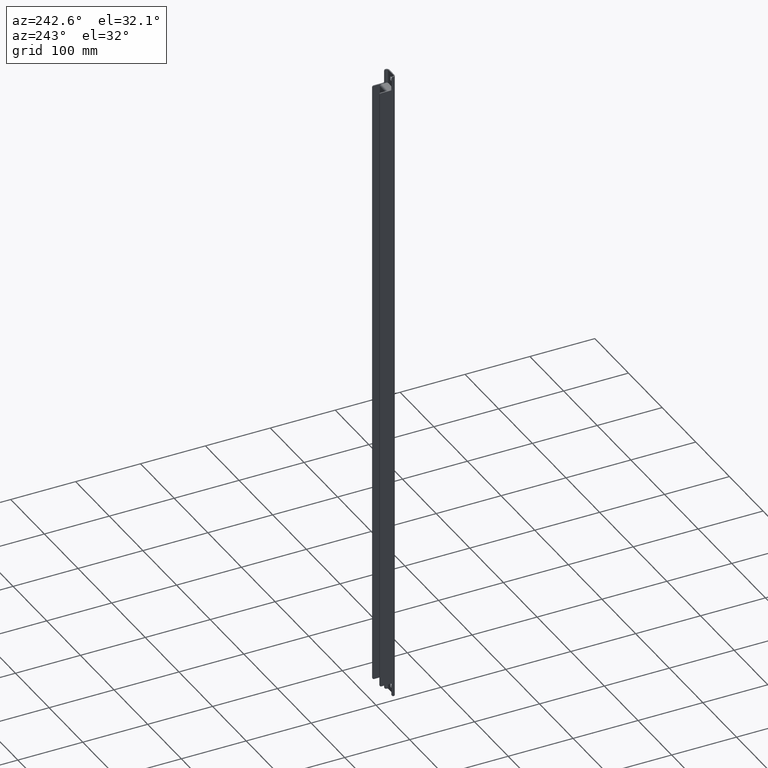
[diagram: clean part render]
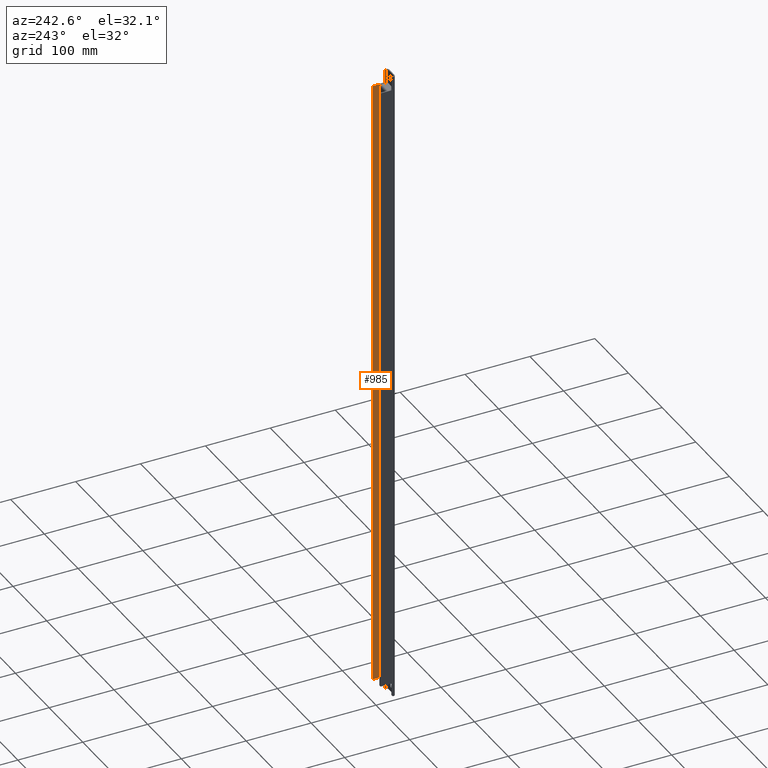
[diagram: same view with one face highlighted and labeled with its STEP entity id]
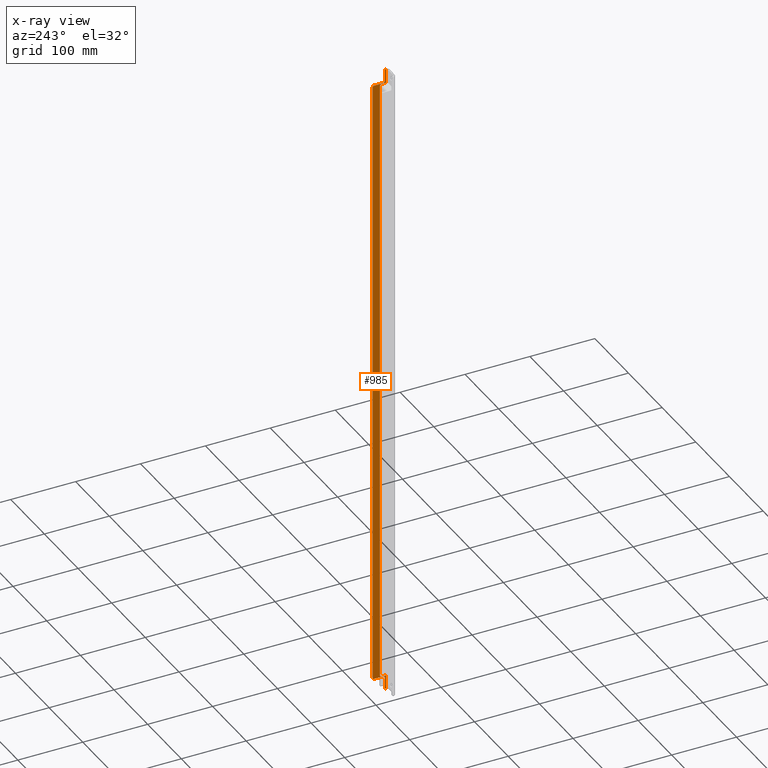
[diagram: x-ray of the same camera — body ghosted, the highlighted face saturated]
A machine part, auxiliary view. The second image highlights one B-rep face of the part: STEP entity #985.
The next image is the same camera in x-ray: the body ghosted, the highlighted face saturated — about 0% of this face is hidden behind the body in this view.
In plain terms, the highlighted planar face has unit normal (1, -0, 0).
Its self-contained STEP definition (entity closure, byte-faithful):
#40=LINE('',#1554,#128);
#45=LINE('',#1569,#133);
#46=LINE('',#1574,#134);
#57=LINE('',#1613,#145);
#58=LINE('',#1617,#146);
#59=LINE('',#1621,#147);
#60=LINE('',#1625,#148);
#61=LINE('',#1629,#149);
#62=LINE('',#1633,#150);
#63=LINE('',#1637,#151);
#128=VECTOR('',#1228,1000.);
#133=VECTOR('',#1239,1000.);
#134=VECTOR('',#1246,1000.);
#145=VECTOR('',#1281,1000.);
#146=VECTOR('',#1284,1000.);
#147=VECTOR('',#1287,1000.);
#148=VECTOR('',#1290,1000.);
#149=VECTOR('',#1293,1000.);
#150=VECTOR('',#1296,1000.);
#151=VECTOR('',#1299,1000.);
#298=ORIENTED_EDGE('',*,*,#555,.F.);
#299=ORIENTED_EDGE('',*,*,#577,.T.);
#300=ORIENTED_EDGE('',*,*,#558,.F.);
#301=ORIENTED_EDGE('',*,*,#578,.T.);
#302=ORIENTED_EDGE('',*,*,#548,.F.);
#303=ORIENTED_EDGE('',*,*,#579,.F.);
#304=ORIENTED_EDGE('',*,*,#580,.T.);
#305=ORIENTED_EDGE('',*,*,#581,.T.);
#306=ORIENTED_EDGE('',*,*,#582,.T.);
#307=ORIENTED_EDGE('',*,*,#583,.T.);
#308=ORIENTED_EDGE('',*,*,#584,.T.);
#309=ORIENTED_EDGE('',*,*,#585,.T.);
#310=ORIENTED_EDGE('',*,*,#586,.T.);
#311=ORIENTED_EDGE('',*,*,#587,.T.);
#312=ORIENTED_EDGE('',*,*,#588,.T.);
#313=ORIENTED_EDGE('',*,*,#589,.T.);
#314=ORIENTED_EDGE('',*,*,#590,.T.);
#315=ORIENTED_EDGE('',*,*,#591,.F.);
#548=EDGE_CURVE('',#692,#693,#40,.T.);
#555=EDGE_CURVE('',#698,#699,#45,.T.);
#558=EDGE_CURVE('',#700,#701,#46,.T.);
#577=EDGE_CURVE('',#698,#701,#780,.T.);
#578=EDGE_CURVE('',#700,#693,#781,.T.);
#579=EDGE_CURVE('',#716,#692,#57,.T.);
#580=EDGE_CURVE('',#716,#717,#782,.T.);
#581=EDGE_CURVE('',#717,#718,#58,.T.);
#582=EDGE_CURVE('',#718,#719,#783,.T.);
#583=EDGE_CURVE('',#719,#720,#59,.T.);
#584=EDGE_CURVE('',#720,#721,#784,.T.);
#585=EDGE_CURVE('',#721,#722,#60,.T.);
#586=EDGE_CURVE('',#722,#723,#785,.T.);
#587=EDGE_CURVE('',#723,#724,#61,.T.);
#588=EDGE_CURVE('',#724,#725,#786,.T.);
#589=EDGE_CURVE('',#725,#726,#62,.T.);
#590=EDGE_CURVE('',#726,#727,#787,.T.);
#591=EDGE_CURVE('',#699,#727,#63,.T.);
#692=VERTEX_POINT('',#1555);
#693=VERTEX_POINT('',#1556);
#698=VERTEX_POINT('',#1568);
#699=VERTEX_POINT('',#1570);
#700=VERTEX_POINT('',#1575);
#701=VERTEX_POINT('',#1576);
#716=VERTEX_POINT('',#1614);
#717=VERTEX_POINT('',#1616);
#718=VERTEX_POINT('',#1618);
#719=VERTEX_POINT('',#1620);
#720=VERTEX_POINT('',#1622);
#721=VERTEX_POINT('',#1624);
#722=VERTEX_POINT('',#1626);
#723=VERTEX_POINT('',#1628);
#724=VERTEX_POINT('',#1630);
#725=VERTEX_POINT('',#1632);
#726=VERTEX_POINT('',#1634);
#727=VERTEX_POINT('',#1636);
#780=CIRCLE('',#1084,3.);
#781=CIRCLE('',#1085,3.);
#782=CIRCLE('',#1086,2.);
#783=CIRCLE('',#1087,2.);
#784=CIRCLE('',#1088,2.);
#785=CIRCLE('',#1089,2.);
#786=CIRCLE('',#1090,2.);
#787=CIRCLE('',#1091,2.);
#829=EDGE_LOOP('',(#298,#299,#300,#301,#302,#303,#304,#305,#306,#307,#308,
#309,#310,#311,#312,#313,#314,#315));
#897=FACE_BOUND('',#829,.T.);
#954=PLANE('',#1083);
#985=ADVANCED_FACE('',(#897),#954,.F.);
#1083=AXIS2_PLACEMENT_3D('',#1610,#1275,#1276);
#1084=AXIS2_PLACEMENT_3D('',#1611,#1277,#1278);
#1085=AXIS2_PLACEMENT_3D('',#1612,#1279,#1280);
#1086=AXIS2_PLACEMENT_3D('',#1615,#1282,#1283);
#1087=AXIS2_PLACEMENT_3D('',#1619,#1285,#1286);
#1088=AXIS2_PLACEMENT_3D('',#1623,#1288,#1289);
#1089=AXIS2_PLACEMENT_3D('',#1627,#1291,#1292);
#1090=AXIS2_PLACEMENT_3D('',#1631,#1294,#1295);
#1091=AXIS2_PLACEMENT_3D('',#1635,#1297,#1298);
#1228=DIRECTION('',(4.06163832661068E-16,1.,-8.6117241928882E-15));
#1239=DIRECTION('',(-5.71375592277907E-16,-1.,-1.96182842258948E-15));
#1246=DIRECTION('',(-1.21257418434899E-16,-3.32494788514936E-15,-1.));
#1275=DIRECTION('',(1.,-4.06163832661068E-16,8.93686180177302E-17));
#1276=DIRECTION('',(8.93686180177302E-17,1.66533453693773E-16,-1.));
#1277=DIRECTION('',(1.,-4.06163832661068E-16,8.93686180177302E-17));
#1278=DIRECTION('',(4.06163832661068E-16,1.,0.));
#1279=DIRECTION('',(1.,-4.06163832661068E-16,8.93686180177302E-17));
#1280=DIRECTION('',(4.06163832661068E-16,1.,0.));
#1281=DIRECTION('',(8.93686180177302E-17,1.31838984174237E-16,-1.));
#1282=DIRECTION('',(-1.,4.06163832661068E-16,-8.93686180177302E-17));
#1283=DIRECTION('',(8.93686180177302E-17,1.66533453693773E-16,-1.));
#1284=DIRECTION('',(8.93686180177302E-17,4.2624633981144E-17,-1.));
#1285=DIRECTION('',(1.,-4.06163832661068E-16,8.93686180177302E-17));
#1286=DIRECTION('',(8.93686180177302E-17,1.66533453693773E-16,-1.));
#1287=DIRECTION('',(4.06163832661068E-16,1.,1.66533453693773E-16));
#1288=DIRECTION('',(-1.,4.06163832661068E-16,-8.93686180177302E-17));
#1289=DIRECTION('',(8.93686180177302E-17,1.66533453693773E-16,-1.));
#1290=DIRECTION('',(8.93686180177302E-17,1.66533453693773E-16,-1.));
#1291=DIRECTION('',(-1.,4.06163832661068E-16,-8.93686180177302E-17));
#1292=DIRECTION('',(8.93686180177302E-17,1.66533453693773E-16,-1.));
#1293=DIRECTION('',(-4.06163832661068E-16,-1.,-1.66533453693773E-16));
#1294=DIRECTION('',(1.,-4.06163832661068E-16,8.93686180177302E-17));
#1295=DIRECTION('',(8.93686180177302E-17,1.66533453693773E-16,-1.));
#1296=DIRECTION('',(8.93686180177302E-17,1.66533453693773E-16,-1.));
#1297=DIRECTION('',(-1.,4.06163832661068E-16,-8.93686180177302E-17));
#1298=DIRECTION('',(8.93686180177551E-17,6.15323764163733E-14,-1.));
#1299=DIRECTION('',(8.93686180177302E-17,1.31838984174237E-16,-1.));
#1554=CARTESIAN_POINT('',(10.,-10.9999999999966,478.5));
#1555=CARTESIAN_POINT('',(9.99999999999999,-20.5000000000001,478.5));
#1556=CARTESIAN_POINT('',(10.,-13.9999999999984,478.5));
#1568=CARTESIAN_POINT('',(9.99999999999995,-13.999999999999,-478.5));
#1569=CARTESIAN_POINT('',(9.99999999999995,-10.9999999999959,-478.5));
#1570=CARTESIAN_POINT('',(9.99999999999998,-20.5,-478.5));
#1574=CARTESIAN_POINT('',(10.,-10.9999999999975,350.5));
#1575=CARTESIAN_POINT('',(9.99999999999999,-10.9999999999984,475.5));
#1576=CARTESIAN_POINT('',(9.99999999999994,-10.999999999999,-475.5));
#1610=CARTESIAN_POINT('',(9.99999999999998,-23.,-2.88511979165884E-15));
#1611=CARTESIAN_POINT('',(9.99999999999998,-13.999999999999,-475.5));
#1612=CARTESIAN_POINT('',(9.99999999999999,-13.9999999999984,475.5));
#1613=CARTESIAN_POINT('',(9.99999999999993,-20.5000000000001,625.));
#1614=CARTESIAN_POINT('',(9.99999999999995,-20.5000000000001,500.));
#1615=CARTESIAN_POINT('',(9.99999999999997,-20.5000000000001,498.));
#1616=CARTESIAN_POINT('',(9.99999999999997,-18.5000000000001,498.));
#1617=CARTESIAN_POINT('',(9.99999999999997,-18.5000000000001,125.));
#1618=CARTESIAN_POINT('',(9.99999999999994,-18.5000000000001,481.));
#1619=CARTESIAN_POINT('',(9.99999999999997,-16.5000000000001,481.));
#1620=CARTESIAN_POINT('',(9.99999999999997,-16.5000000000001,479.));
#1621=CARTESIAN_POINT('',(9.99999999999997,-23.0000000000001,479.));
#1622=CARTESIAN_POINT('',(9.99999999999981,-2.00000000000008,479.));
#1623=CARTESIAN_POINT('',(9.99999999999981,-2.00000000000008,477.));
#1624=CARTESIAN_POINT('',(9.99999999999981,-8.32667268468867E-14,477.));
#1625=CARTESIAN_POINT('',(9.99999999999981,-3.46944695195361E-15,9.45149643297925E-16));
#1626=CARTESIAN_POINT('',(9.99999999999985,7.59670104599761E-14,-477.));
#1627=CARTESIAN_POINT('',(9.99999999999989,-1.99999999999992,-477.));
#1628=CARTESIAN_POINT('',(9.99999999999989,-1.99999999999992,-479.));
#1629=CARTESIAN_POINT('',(10.0000000000001,-22.9999999999999,-479.));
#1630=CARTESIAN_POINT('',(10.0000000000001,-16.4999999999999,-479.));
#1631=CARTESIAN_POINT('',(10.0000000000001,-16.4999999999999,-481.));
#1632=CARTESIAN_POINT('',(10.,-18.4999999999999,-481.));
#1633=CARTESIAN_POINT('',(9.99999999999998,-18.5,0.));
#1634=CARTESIAN_POINT('',(10.0000000000001,-18.4999999999999,-498.));
#1635=CARTESIAN_POINT('',(10.0000000000001,-20.4999999999999,-498.));
#1636=CARTESIAN_POINT('',(10.,-20.4999999999999,-500.));
#1637=CARTESIAN_POINT('',(9.99999999999996,-20.5000000000001,250.));